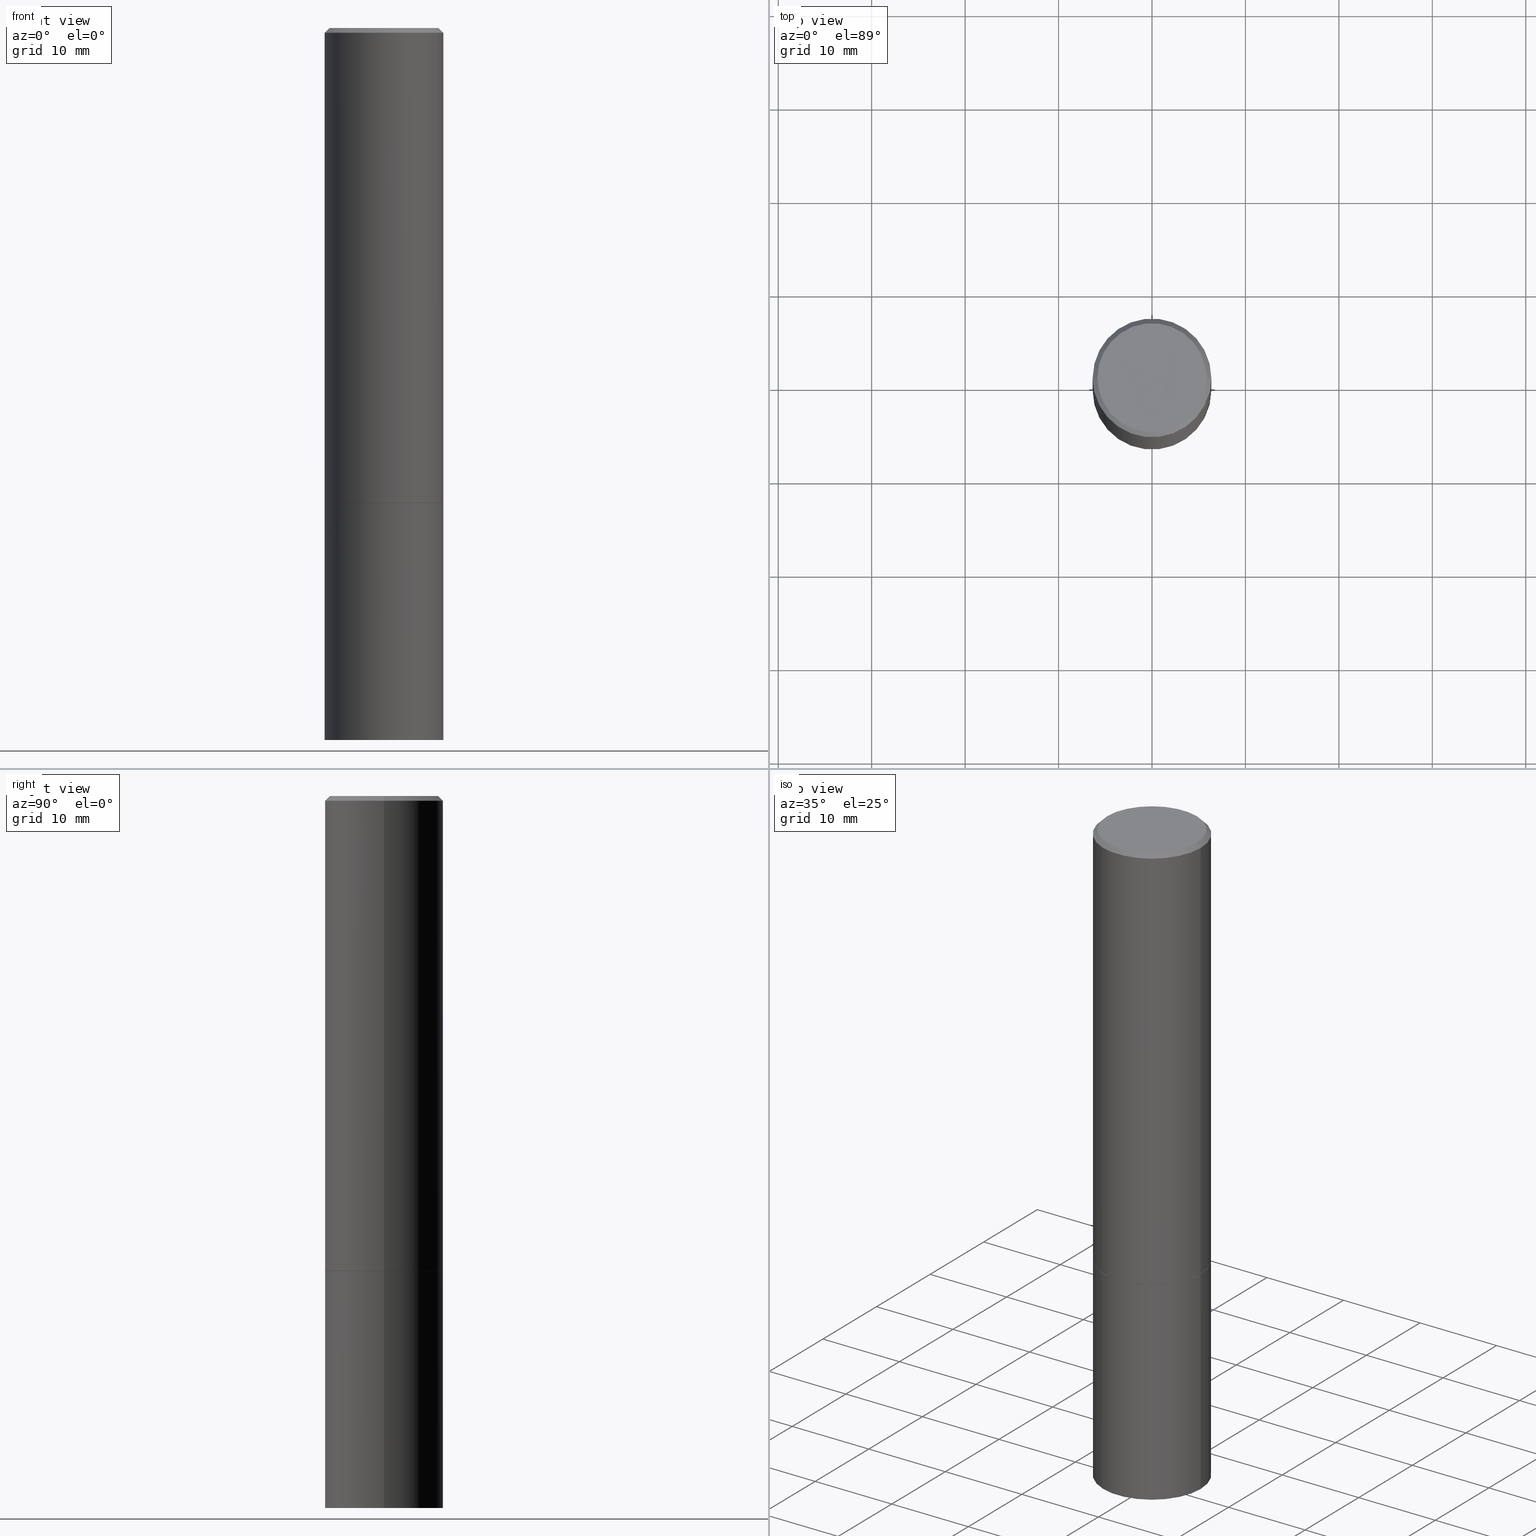
[diagram: canonical four-view strip — front | top / right | iso, engineering-drawing reading convention]
A machine part, canonical four-view strip (front | top / right | iso — engineering-drawing reading convention). The complete STEP part file that produces these views, byte-faithful:
ISO-10303-21;
HEADER;
FILE_DESCRIPTION (( 'STEP AP203' ),
    '1' );
FILE_NAME ('37323.STEP',
    '2024-02-27T21:19:01',
    ( '' ),
    ( '' ),
    'SwSTEP 2.0',
    'SolidWorks 2023',
    '' );
FILE_SCHEMA (( 'CONFIG_CONTROL_DESIGN' ));
ENDSEC;

DATA;
#1 = ADVANCED_FACE ( 'NONE', ( #48 ), #283, .T. ) ;
#2 = APPROVAL_PERSON_ORGANIZATION ( #100, #189, #272 ) ;
#3 = PERSON_AND_ORGANIZATION ( #298, #314 ) ;
#4 = APPROVAL ( #306, 'UNSPECIFIED' ) ;
#5 = AXIS2_PLACEMENT_3D ( 'NONE', #33, #294, #274 ) ;
#6 = DIRECTION ( 'NONE',  ( -2.445468806185136597E-29, 3.491481338843145583E-15, 1.000000000000000000 ) ) ;
#7 = CARTESIAN_POINT ( 'NONE',  ( 4.890937612370296805E-31, -6.982962677686323656E-17, -0.02000000000000009409 ) ) ;
#8 = EDGE_LOOP ( 'NONE', ( #123, #65 ) ) ;
#9 = AXIS2_PLACEMENT_3D ( 'NONE', #219, #335, #73 ) ;
#10 = CARTESIAN_POINT ( 'NONE',  ( 4.890937612370296805E-31, -6.982962677686323656E-17, -0.02000000000000009409 ) ) ;
#11 = PERSON_AND_ORGANIZATION_ROLE ( 'design_owner' ) ;
#12 = VERTEX_POINT ( 'NONE', #76 ) ;
#13 = COORDINATED_UNIVERSAL_TIME_OFFSET ( 5, 0, .BEHIND. ) ;
#14 = CARTESIAN_POINT ( 'NONE',  ( 4.888492143564088712E-29, -6.979471196347448158E-15, -1.999000000000000110 ) ) ;
#15 = ORIENTED_EDGE ( 'NONE', *, *, #18, .T. ) ;
#16 = APPROVAL_DATE_TIME ( #325, #189 ) ;
#17 = CYLINDRICAL_SURFACE ( 'NONE', #118, 0.2500000000000000000 ) ;
#18 = EDGE_CURVE ( 'NONE', #356, #105, #241, .T. ) ;
#19 = ORIENTED_EDGE ( 'NONE', *, *, #255, .T. ) ;
#20 = VECTOR ( 'NONE', #106, 39.37007874015748143 ) ;
#21 = ADVANCED_FACE ( 'NONE', ( #312 ), #308, .T. ) ;
#22 = VERTEX_POINT ( 'NONE', #248 ) ;
#23 = AXIS2_PLACEMENT_3D ( 'NONE', #288, #26, #342 ) ;
#24 = EDGE_CURVE ( 'NONE', #149, #12, #227, .T. ) ;
#25 = CARTESIAN_POINT ( 'NONE',  ( 0.2500000000000000000, -8.725211865769015625E-15, -1.999000000000000110 ) ) ;
#26 = DIRECTION ( 'NONE',  ( 2.445468806185136597E-29, -3.491481338843145583E-15, -1.000000000000000000 ) ) ;
#27 = LINE ( 'NONE', #339, #136 ) ;
#28 = DIRECTION ( 'NONE',  ( 1.000000000000000000, -6.982962677686262766E-15, 0.000000000000000000 ) ) ;
#29 = LENGTH_MEASURE_WITH_UNIT ( LENGTH_MEASURE( 0.02539999999999999897 ), #51 );
#30 = CC_DESIGN_PERSON_AND_ORGANIZATION_ASSIGNMENT ( #3, #75, ( #59 ) ) ;
#31 = DATE_AND_TIME ( #296, #355 ) ;
#32 = LINE ( 'NONE', #337, #190 ) ;
#33 = CARTESIAN_POINT ( 'NONE',  ( 1.745740669421615390E-15, 0.2499999999999930334, -2.000000000000000888 ) ) ;
#34 = CIRCLE ( 'NONE', #80, 0.2299999999999996769 ) ;
#35 = DIRECTION ( 'NONE',  ( 1.000000000000000000, -6.982962677686266711E-15, 4.875813741439106500E-29 ) ) ;
#36 = DIRECTION ( 'NONE',  ( -2.445468806185136877E-29, 3.491481338843145188E-15, 1.000000000000000000 ) ) ;
#37 = ORIENTED_EDGE ( 'NONE', *, *, #145, .F. ) ;
#38 = VECTOR ( 'NONE', #344, 39.37007874015748143 ) ;
#39 = PERSON_AND_ORGANIZATION ( #298, #314 ) ;
#40 = APPLICATION_CONTEXT ( 'configuration controlled 3d designs of mechanical parts and assemblies' ) ;
#41 = CARTESIAN_POINT ( 'NONE',  ( 0.000000000000000000, 0.000000000000000000, 0.000000000000000000 ) ) ;
#42 = ORIENTED_EDGE ( 'NONE', *, *, #61, .T. ) ;
#43 = DIRECTION ( 'NONE',  ( -2.445468806185136597E-29, 3.491481338843145583E-15, 1.000000000000000000 ) ) ;
#44 = ORIENTED_EDGE ( 'NONE', *, *, #145, .T. ) ;
#45 = APPROVAL_STATUS ( 'not_yet_approved' ) ;
#46 = CC_DESIGN_APPROVAL ( #189, ( #297 ) ) ;
#47 = EDGE_LOOP ( 'NONE', ( #326, #226 ) ) ;
#48 = FACE_OUTER_BOUND ( 'NONE', #331, .T. ) ;
#49 = CC_DESIGN_PERSON_AND_ORGANIZATION_ASSIGNMENT ( #186, #11, ( #290 ) ) ;
#50 = DIRECTION ( 'NONE',  ( -2.445468806185136597E-29, 3.491481338843145583E-15, 1.000000000000000000 ) ) ;
#51 =( LENGTH_UNIT ( ) NAMED_UNIT ( * ) SI_UNIT ( $, .METRE. ) );
#52 = EDGE_LOOP ( 'NONE', ( #309, #240, #44, #172 ) ) ;
#53 = CARTESIAN_POINT ( 'NONE',  ( 4.890937612370273754E-29, -6.982962677686291954E-15, -2.000000000000000444 ) ) ;
#54 = DIRECTION ( 'NONE',  ( 1.000000000000000000, -6.982962677686265922E-15, 4.876176775795935793E-29 ) ) ;
#55 = EDGE_CURVE ( 'NONE', #277, #175, #113, .T. ) ;
#56 = AXIS2_PLACEMENT_3D ( 'NONE', #112, #115, #230 ) ;
#57 = PERSON_AND_ORGANIZATION_ROLE ( 'creator' ) ;
#58 = ADVANCED_FACE ( 'NONE', ( #311 ), #164, .F. ) ;
#59 = PRODUCT_DEFINITION_FORMATION_WITH_SPECIFIED_SOURCE ( 'ANY', '', #290, .NOT_KNOWN. ) ;
#60 = CARTESIAN_POINT ( 'NONE',  ( 8.350811314681758556E-46, -1.192274536304357760E-31, -3.414809992080329023E-17 ) ) ;
#61 = EDGE_CURVE ( 'NONE', #151, #127, #147, .T. ) ;
#62 = EDGE_LOOP ( 'NONE', ( #92, #152, #96, #37 ) ) ;
#63 = DIRECTION ( 'NONE',  ( 1.000000000000000000, -6.982962677686267499E-15, 0.000000000000000000 ) ) ;
#64 = AXIS2_PLACEMENT_3D ( 'NONE', #215, #72, #28 ) ;
#65 = ORIENTED_EDGE ( 'NONE', *, *, #142, .F. ) ;
#66 = COORDINATED_UNIVERSAL_TIME_OFFSET ( 5, 0, .BEHIND. ) ;
#67 = EDGE_LOOP ( 'NONE', ( #304, #245 ) ) ;
#68 = ORIENTED_EDGE ( 'NONE', *, *, #351, .T. ) ;
#69 = ORIENTED_EDGE ( 'NONE', *, *, #328, .F. ) ;
#70 = MANIFOLD_SOLID_BREP ( 'Body-Move/Copy2[2]', #195 ) ;
#71 = VECTOR ( 'NONE', #79, 39.37007874015748854 ) ;
#72 = DIRECTION ( 'NONE',  ( -2.445468806185136597E-29, 3.491481338843145583E-15, 1.000000000000000000 ) ) ;
#73 = DIRECTION ( 'NONE',  ( -1.000000000000000000, 6.982962677686265922E-15, -4.876176775795935793E-29 ) ) ;
#74 = DIRECTION ( 'NONE',  ( 1.000000000000000000, 0.000000000000000000, 0.000000000000000000 ) ) ;
#75 = PERSON_AND_ORGANIZATION_ROLE ( 'design_supplier' ) ;
#76 = CARTESIAN_POINT ( 'NONE',  ( 0.2500000000000000000, -1.222018468595100303E-14, -3.000000000000000444 ) ) ;
#77 = PLANE ( 'NONE',  #322 ) ;
#78 = ADVANCED_FACE ( 'NONE', ( #170 ), #234, .T. ) ;
#79 = DIRECTION ( 'NONE',  ( 0.7071067811865232589, -2.468850131082003836E-15, 0.7071067811865715536 ) ) ;
#80 = AXIS2_PLACEMENT_3D ( 'NONE', #60, #323, #117 ) ;
#81 = EDGE_CURVE ( 'NONE', #175, #277, #135, .T. ) ;
#82 = DIRECTION ( 'NONE',  ( -2.445468806185136597E-29, 3.491481338843145583E-15, 1.000000000000000000 ) ) ;
#83 = CARTESIAN_POINT ( 'NONE',  ( -0.2299999999999996769, 1.640996229256269758E-15, -3.414809992081464243E-17 ) ) ;
#84 = APPLICATION_PROTOCOL_DEFINITION ( 'international standard', 'config_control_design', 1994, #338 ) ;
#85 = DIRECTION ( 'NONE',  ( -2.445468806185136597E-29, 3.491481338843145583E-15, 1.000000000000000000 ) ) ;
#86 = AXIS2_PLACEMENT_3D ( 'NONE', #53, #50, #128 ) ;
#87 = CIRCLE ( 'NONE', #168, 0.2500000000000000000 ) ;
#88 = CC_DESIGN_SECURITY_CLASSIFICATION ( #297, ( #59 ) ) ;
#89 = CARTESIAN_POINT ( 'NONE',  ( 7.336406418555409790E-29, -1.047444401652943635E-14, -3.000000000000000444 ) ) ;
#90 = ORIENTED_EDGE ( 'NONE', *, *, #295, .T. ) ;
#91 = DIRECTION ( 'NONE',  ( 1.000000000000000000, -6.982962677686266711E-15, 4.876176775795935793E-29 ) ) ;
#92 = ORIENTED_EDGE ( 'NONE', *, *, #209, .F. ) ;
#93 = ORIENTED_EDGE ( 'NONE', *, *, #204, .F. ) ;
#94 = AXIS2_PLACEMENT_3D ( 'NONE', #97, #280, #108 ) ;
#95 = CYLINDRICAL_SURFACE ( 'NONE', #263, 0.2499999999999998057 ) ;
#96 = ORIENTED_EDGE ( 'NONE', *, *, #251, .T. ) ;
#97 = CARTESIAN_POINT ( 'NONE',  ( 4.888492143564088712E-29, -6.979471196347448158E-15, -1.999000000000000110 ) ) ;
#98 = ORIENTED_EDGE ( 'NONE', *, *, #61, .F. ) ;
#99 = ADVANCED_FACE ( 'NONE', ( #104 ), #233, .T. ) ;
#100 = PERSON_AND_ORGANIZATION ( #298, #314 ) ;
#101 = CARTESIAN_POINT ( 'NONE',  ( 4.890937612370273754E-29, -6.982962677686291954E-15, -2.000000000000000444 ) ) ;
#102 = DATE_AND_TIME ( #363, #250 ) ;
#103 = PLANE ( 'NONE',  #9 ) ;
#104 = FACE_OUTER_BOUND ( 'NONE', #183, .T. ) ;
#105 = VERTEX_POINT ( 'NONE', #216 ) ;
#106 = DIRECTION ( 'NONE',  ( -2.445468806185136877E-29, 3.491481338843145188E-15, 1.000000000000000000 ) ) ;
#107 = CARTESIAN_POINT ( 'NONE',  ( 0.2299999999999996769, -1.681434332853596842E-15, -3.414809992079179628E-17 ) ) ;
#108 = DIRECTION ( 'NONE',  ( 1.000000000000000000, -6.982962677686266711E-15, 0.000000000000000000 ) ) ;
#109 = LOCAL_TIME ( 16, 19, 1.000000000000000000, #275 ) ;
#110 = DESIGN_CONTEXT ( 'detailed design', #40, 'design' ) ;
#111 = ADVANCED_FACE ( 'NONE', ( #359 ), #281, .T. ) ;
#112 = CARTESIAN_POINT ( 'NONE',  ( 4.890937612370296805E-31, -6.982962677686323656E-17, -0.02000000000000009409 ) ) ;
#113 = CIRCLE ( 'NONE', #160, 0.2500000000000000000 ) ;
#114 = AXIS2_PLACEMENT_3D ( 'NONE', #224, #82, #137 ) ;
#115 = DIRECTION ( 'NONE',  ( 2.445468806185136597E-29, -3.491481338843145583E-15, -1.000000000000000000 ) ) ;
#116 = ADVANCED_FACE ( 'NONE', ( #182 ), #103, .T. ) ;
#117 = DIRECTION ( 'NONE',  ( 1.000000000000000000, -6.982962677686266711E-15, 4.875813741439106500E-29 ) ) ;
#118 = AXIS2_PLACEMENT_3D ( 'NONE', #307, #203, #119 ) ;
#119 = DIRECTION ( 'NONE',  ( 1.000000000000000000, -6.982962677686266711E-15, 4.876176775795935793E-29 ) ) ;
#120 = DIRECTION ( 'NONE',  ( 1.000000000000000000, -6.982962677686266711E-15, 4.876176775795935793E-29 ) ) ;
#121 = CALENDAR_DATE ( 2024, 27, 2 ) ;
#122 = DATE_AND_TIME ( #176, #225 ) ;
#123 = ORIENTED_EDGE ( 'NONE', *, *, #18, .F. ) ;
#124 = APPROVAL ( #45, 'UNSPECIFIED' ) ;
#125 = ORIENTED_EDGE ( 'NONE', *, *, #251, .F. ) ;
#126 = AXIS2_PLACEMENT_3D ( 'NONE', #279, #246, #362 ) ;
#127 = VERTEX_POINT ( 'NONE', #258 ) ;
#128 = DIRECTION ( 'NONE',  ( 1.000000000000000000, -6.982962677686266711E-15, 0.000000000000000000 ) ) ;
#129 = PERSON_AND_ORGANIZATION ( #298, #314 ) ;
#130 = AXIS2_PLACEMENT_3D ( 'NONE', #101, #187, #158 ) ;
#131 = AXIS2_PLACEMENT_3D ( 'NONE', #140, #229, #169 ) ;
#132 = DIRECTION ( 'NONE',  ( -2.445468806185136597E-29, 3.491481338843145583E-15, 1.000000000000000000 ) ) ;
#133 = EDGE_LOOP ( 'NONE', ( #239, #300, #178, #146 ) ) ;
#134 =( CONVERSION_BASED_UNIT ( 'INCH', #29 ) LENGTH_UNIT ( ) NAMED_UNIT ( #292 ) );
#135 = CIRCLE ( 'NONE', #354, 0.2500000000000000000 ) ;
#136 = VECTOR ( 'NONE', #252, 39.37007874015748143 ) ;
#137 = DIRECTION ( 'NONE',  ( 1.000000000000000000, -6.982962677686266711E-15, 4.876176775795935793E-29 ) ) ;
#138 = DIRECTION ( 'NONE',  ( 1.000000000000000000, -6.982962677686267499E-15, 0.000000000000000000 ) ) ;
#139 = EDGE_CURVE ( 'NONE', #303, #157, #163, .T. ) ;
#140 = CARTESIAN_POINT ( 'NONE',  ( 1.606081415867838898E-15, 0.2299999999999996769, -8.201147578943240153E-16 ) ) ;
#141 = APPROVAL_PERSON_ORGANIZATION ( #129, #124, #155 ) ;
#142 = EDGE_CURVE ( 'NONE', #105, #356, #217, .T. ) ;
#143 = FACE_OUTER_BOUND ( 'NONE', #133, .T. ) ;
#144 = CIRCLE ( 'NONE', #365, 0.2500000000000000000 ) ;
#145 = EDGE_CURVE ( 'NONE', #303, #243, #32, .T. ) ;
#146 = ORIENTED_EDGE ( 'NONE', *, *, #55, .F. ) ;
#147 = LINE ( 'NONE', #177, #208 ) ;
#148 = PERSON_AND_ORGANIZATION ( #298, #314 ) ;
#149 = VERTEX_POINT ( 'NONE', #192 ) ;
#150 = DIRECTION ( 'NONE',  ( -2.445468806185136597E-29, 3.491481338843145583E-15, 1.000000000000000000 ) ) ;
#151 = VERTEX_POINT ( 'NONE', #25 ) ;
#152 = ORIENTED_EDGE ( 'NONE', *, *, #197, .T. ) ;
#153 = CC_DESIGN_APPROVAL ( #124, ( #340 ) ) ;
#154 = CALENDAR_DATE ( 2024, 27, 2 ) ;
#155 = APPROVAL_ROLE ( '' ) ;
#156 = CC_DESIGN_DATE_AND_TIME_ASSIGNMENT ( #122, #302, ( #340 ) ) ;
#157 = VERTEX_POINT ( 'NONE', #107 ) ;
#158 = DIRECTION ( 'NONE',  ( 1.000000000000000000, -6.982962677686266711E-15, 0.000000000000000000 ) ) ;
#159 = EDGE_CURVE ( 'NONE', #12, #149, #87, .T. ) ;
#160 = AXIS2_PLACEMENT_3D ( 'NONE', #161, #285, #185 ) ;
#161 = CARTESIAN_POINT ( 'NONE',  ( 4.890937612370273754E-29, -6.982962677686291954E-15, -2.000000000000000444 ) ) ;
#162 = CARTESIAN_POINT ( 'NONE',  ( 4.890937612370273754E-29, -6.982962677686291954E-15, -2.000000000000000444 ) ) ;
#163 = CIRCLE ( 'NONE', #268, 0.2299999999999996769 ) ;
#164 = PLANE ( 'NONE',  #5 ) ;
#165 = SECURITY_CLASSIFICATION_LEVEL ( 'unclassified' ) ;
#166 = COORDINATED_UNIVERSAL_TIME_OFFSET ( 5, 0, .BEHIND. ) ;
#167 = PRODUCT_RELATED_PRODUCT_CATEGORY ( 'detail', '', ( #290 ) ) ;
#168 = AXIS2_PLACEMENT_3D ( 'NONE', #89, #171, #265 ) ;
#169 = DIRECTION ( 'NONE',  ( -1.000000000000000000, 6.982962677686265922E-15, -4.876176775795935793E-29 ) ) ;
#170 = FACE_OUTER_BOUND ( 'NONE', #235, .T. ) ;
#171 = DIRECTION ( 'NONE',  ( -2.445468806185136597E-29, 3.491481338843145583E-15, 1.000000000000000000 ) ) ;
#172 = ORIENTED_EDGE ( 'NONE', *, *, #204, .T. ) ;
#173 = COORDINATED_UNIVERSAL_TIME_OFFSET ( 5, 0, .BEHIND. ) ;
#174 = ADVANCED_FACE ( 'NONE', ( #259 ), #231, .F. ) ;
#175 = VERTEX_POINT ( 'NONE', #266 ) ;
#176 = CALENDAR_DATE ( 2024, 27, 2 ) ;
#177 = CARTESIAN_POINT ( 'NONE',  ( 0.2499999999999998057, -1.745740669421565297E-15, 1.219044193948982967E-29 ) ) ;
#178 = ORIENTED_EDGE ( 'NONE', *, *, #181, .T. ) ;
#179 = ORIENTED_EDGE ( 'NONE', *, *, #321, .F. ) ;
#180 = APPLICATION_PROTOCOL_DEFINITION ( 'international standard', 'config_control_design', 1994, #40 ) ;
#181 = EDGE_CURVE ( 'NONE', #12, #175, #264, .T. ) ;
#182 = FACE_OUTER_BOUND ( 'NONE', #301, .T. ) ;
#183 = EDGE_LOOP ( 'NONE', ( #329, #324, #358, #269 ) ) ;
#184 = CIRCLE ( 'NONE', #94, 0.2500000000000000000 ) ;
#185 = DIRECTION ( 'NONE',  ( 1.000000000000000000, -6.982962677686266711E-15, 0.000000000000000000 ) ) ;
#186 = PERSON_AND_ORGANIZATION ( #298, #314 ) ;
#187 = DIRECTION ( 'NONE',  ( -2.445468806185136597E-29, 3.491481338843145583E-15, 1.000000000000000000 ) ) ;
#188 = CARTESIAN_POINT ( 'NONE',  ( 4.890937612370273754E-29, -6.982962677686291954E-15, -2.000000000000000444 ) ) ;
#189 = APPROVAL ( #247, 'UNSPECIFIED' ) ;
#190 = VECTOR ( 'NONE', #253, 39.37007874015748143 ) ;
#191 = FACE_OUTER_BOUND ( 'NONE', #8, .T. ) ;
#192 = CARTESIAN_POINT ( 'NONE',  ( -0.2500000000000000000, -6.952346507707613689E-15, -3.000000000000000444 ) ) ;
#193 = MANIFOLD_SOLID_BREP ( 'Body-Move/Copy2[1]', #249 ) ;
#194 = CARTESIAN_POINT ( 'NONE',  ( -0.2489999999999999991, -5.213711265643642498E-15, -2.000000000000000444 ) ) ;
#195 = CLOSED_SHELL ( 'NONE', ( #1, #78, #21, #221, #273, #99, #333, #174 ) ) ;
#196 =( GEOMETRIC_REPRESENTATION_CONTEXT ( 3 ) GLOBAL_UNCERTAINTY_ASSIGNED_CONTEXT ( ( #207 ) ) GLOBAL_UNIT_ASSIGNED_CONTEXT ( ( #134, #316, #310 ) ) REPRESENTATION_CONTEXT ( 'NONE', 'WORKASPACE' ) );
#197 = EDGE_CURVE ( 'NONE', #157, #127, #257, .T. ) ;
#198 = CARTESIAN_POINT ( 'NONE',  ( 8.350811314681758556E-46, -1.192274536304357760E-31, -3.414809992080329023E-17 ) ) ;
#199 = LOCAL_TIME ( 16, 19, 1.000000000000000000, #173 ) ;
#200 = PERSON_AND_ORGANIZATION ( #298, #314 ) ;
#201 = CARTESIAN_POINT ( 'NONE',  ( 0.2500000000000000000, -1.745740669421566678E-15, 1.219044193948983948E-29 ) ) ;
#202 = EDGE_LOOP ( 'NONE', ( #366, #90, #347, #211 ) ) ;
#203 = DIRECTION ( 'NONE',  ( -2.445468806185136597E-29, 3.491481338843145583E-15, 1.000000000000000000 ) ) ;
#204 = EDGE_CURVE ( 'NONE', #243, #127, #341, .T. ) ;
#205 = ORIENTED_EDGE ( 'NONE', *, *, #24, .F. ) ;
#206 = CARTESIAN_POINT ( 'NONE',  ( -0.2499999999999996114, 1.675911042644700618E-15, -0.02000000000000009409 ) ) ;
#207 = UNCERTAINTY_MEASURE_WITH_UNIT (LENGTH_MEASURE( 1.000000000000000082E-05 ), #134, 'distance_accuracy_value', 'NONE');
#208 = VECTOR ( 'NONE', #36, 39.37007874015748143 ) ;
#209 = EDGE_CURVE ( 'NONE', #157, #303, #34, .T. ) ;
#210 = AXIS2_PLACEMENT_3D ( 'NONE', #7, #85, #138 ) ;
#211 = ORIENTED_EDGE ( 'NONE', *, *, #181, .F. ) ;
#212 = ORIENTED_EDGE ( 'NONE', *, *, #321, .T. ) ;
#213 = EDGE_LOOP ( 'NONE', ( #179, #271, #42, #93 ) ) ;
#214 = CONICAL_SURFACE ( 'NONE', #56, 0.2499999999999996114, 0.7853981633974457255 ) ;
#215 = CARTESIAN_POINT ( 'NONE',  ( 7.336406418555409790E-29, -1.047444401652943635E-14, -3.000000000000000444 ) ) ;
#216 = CARTESIAN_POINT ( 'NONE',  ( -0.2489999999999999991, -5.208412811295420884E-15, -2.000000000000000444 ) ) ;
#217 = CIRCLE ( 'NONE', #327, 0.2489999999999999991 ) ;
#218 = APPROVAL_DATE_TIME ( #102, #124 ) ;
#219 = CARTESIAN_POINT ( 'NONE',  ( 1.745740669421639647E-15, 0.2499999999999895084, -3.000000000000001332 ) ) ;
#220 = MECHANICAL_CONTEXT ( 'NONE', #338, 'mechanical' ) ;
#221 = ADVANCED_FACE ( 'NONE', ( #293 ), #214, .T. ) ;
#222 = LINE ( 'NONE', #287, #71 ) ;
#223 = LINE ( 'NONE', #343, #20 ) ;
#224 = CARTESIAN_POINT ( 'NONE',  ( 0.000000000000000000, 0.000000000000000000, 0.000000000000000000 ) ) ;
#225 = LOCAL_TIME ( 16, 19, 1.000000000000000000, #13 ) ;
#226 = ORIENTED_EDGE ( 'NONE', *, *, #55, .T. ) ;
#227 = CIRCLE ( 'NONE', #64, 0.2500000000000000000 ) ;
#228 = CIRCLE ( 'NONE', #284, 0.2499999999999996114 ) ;
#229 = DIRECTION ( 'NONE',  ( 2.438088387897960049E-29, -3.491481338843145188E-15, -1.000000000000000000 ) ) ;
#230 = DIRECTION ( 'NONE',  ( -1.000000000000000000, 6.982962677686267499E-15, 0.000000000000000000 ) ) ;
#231 = PLANE ( 'NONE',  #131 ) ;
#232 = ADVANCED_FACE ( 'NONE', ( #143 ), #17, .T. ) ;
#233 = CONICAL_SURFACE ( 'NONE', #126, 0.2489999999999999991, 0.7853981633974141952 ) ;
#234 = CYLINDRICAL_SURFACE ( 'NONE', #261, 0.2499999999999998057 ) ;
#235 = EDGE_LOOP ( 'NONE', ( #19, #212, #125, #98 ) ) ;
#236 = CC_DESIGN_PERSON_AND_ORGANIZATION_ASSIGNMENT ( #39, #270, ( #340 ) ) ;
#237 = DIRECTION ( 'NONE',  ( -2.445468806185136597E-29, 3.491481338843145583E-15, 1.000000000000000000 ) ) ;
#238 = CARTESIAN_POINT ( 'NONE',  ( 4.890937612370273754E-29, -6.982962677686291954E-15, -2.000000000000000444 ) ) ;
#239 = ORIENTED_EDGE ( 'NONE', *, *, #295, .F. ) ;
#240 = ORIENTED_EDGE ( 'NONE', *, *, #139, .F. ) ;
#241 = CIRCLE ( 'NONE', #130, 0.2489999999999999991 ) ;
#242 = CC_DESIGN_APPROVAL ( #4, ( #59 ) ) ;
#243 = VERTEX_POINT ( 'NONE', #206 ) ;
#244 = CARTESIAN_POINT ( 'NONE',  ( -0.2500000000000000000, -6.952346507707613689E-15, -2.000000000000000444 ) ) ;
#245 = ORIENTED_EDGE ( 'NONE', *, *, #209, .T. ) ;
#246 = DIRECTION ( 'NONE',  ( -2.445468806185136597E-29, 3.491481338843145583E-15, 1.000000000000000000 ) ) ;
#247 = APPROVAL_STATUS ( 'not_yet_approved' ) ;
#248 = CARTESIAN_POINT ( 'NONE',  ( -0.2500000000000000555, -1.748293572161902502E-15, -1.999000000000000110 ) ) ;
#249 = CLOSED_SHELL ( 'NONE', ( #111, #116, #58, #232 ) ) ;
#250 = LOCAL_TIME ( 16, 19, 1.000000000000000000, #66 ) ;
#251 = EDGE_CURVE ( 'NONE', #127, #243, #228, .T. ) ;
#252 = DIRECTION ( 'NONE',  ( -2.445468806185136877E-29, 3.491481338843145188E-15, 1.000000000000000000 ) ) ;
#253 = DIRECTION ( 'NONE',  ( -0.7071067811865456854, 2.468850131082237733E-15, -0.7071067811865493491 ) ) ;
#254 = DIRECTION ( 'NONE',  ( -0.7071067811865232589, 7.493145998870265808E-15, 0.7071067811865715536 ) ) ;
#255 = EDGE_CURVE ( 'NONE', #151, #22, #144, .T. ) ;
#256 = APPROVAL_PERSON_ORGANIZATION ( #200, #4, #361 ) ;
#257 = LINE ( 'NONE', #319, #345 ) ;
#258 = CARTESIAN_POINT ( 'NONE',  ( 0.2499999999999996114, -1.784954126219743428E-15, -0.02000000000000009409 ) ) ;
#259 = FACE_OUTER_BOUND ( 'NONE', #67, .T. ) ;
#260 = APPROVAL_DATE_TIME ( #31, #4 ) ;
#261 = AXIS2_PLACEMENT_3D ( 'NONE', #41, #346, #120 ) ;
#262 = CC_DESIGN_PERSON_AND_ORGANIZATION_ASSIGNMENT ( #148, #352, ( #297 ) ) ;
#263 = AXIS2_PLACEMENT_3D ( 'NONE', #330, #43, #91 ) ;
#264 = LINE ( 'NONE', #201, #38 ) ;
#265 = DIRECTION ( 'NONE',  ( 1.000000000000000000, -6.982962677686262766E-15, 0.000000000000000000 ) ) ;
#266 = CARTESIAN_POINT ( 'NONE',  ( 0.2500000000000000000, -8.728703347107858632E-15, -2.000000000000000444 ) ) ;
#267 = CC_DESIGN_DATE_AND_TIME_ASSIGNMENT ( #349, #305, ( #297 ) ) ;
#268 = AXIS2_PLACEMENT_3D ( 'NONE', #198, #6, #35 ) ;
#269 = ORIENTED_EDGE ( 'NONE', *, *, #286, .F. ) ;
#270 = PERSON_AND_ORGANIZATION_ROLE ( 'creator' ) ;
#271 = ORIENTED_EDGE ( 'NONE', *, *, #286, .T. ) ;
#272 = APPROVAL_ROLE ( '' ) ;
#273 = ADVANCED_FACE ( 'NONE', ( #278 ), #95, .T. ) ;
#274 = DIRECTION ( 'NONE',  ( -1.000000000000000000, 6.982962677686265922E-15, -4.876176775795935793E-29 ) ) ;
#275 = COORDINATED_UNIVERSAL_TIME_OFFSET ( 5, 0, .BEHIND. ) ;
#276 = AXIS2_PLACEMENT_3D ( 'NONE', #364, #336, #74 ) ;
#277 = VERTEX_POINT ( 'NONE', #244 ) ;
#278 = FACE_OUTER_BOUND ( 'NONE', #213, .T. ) ;
#279 = CARTESIAN_POINT ( 'NONE',  ( 4.890937612370273754E-29, -6.982962677686291954E-15, -2.000000000000000444 ) ) ;
#280 = DIRECTION ( 'NONE',  ( -2.445468806185136597E-29, 3.491481338843145583E-15, 1.000000000000000000 ) ) ;
#281 = CYLINDRICAL_SURFACE ( 'NONE', #114, 0.2500000000000000000 ) ;
#282 = CARTESIAN_POINT ( 'NONE',  ( 0.2489999999999999991, -8.721720384430172617E-15, -2.000000000000000444 ) ) ;
#283 = CONICAL_SURFACE ( 'NONE', #86, 0.2489999999999999991, 0.7853981633974141952 ) ;
#284 = AXIS2_PLACEMENT_3D ( 'NONE', #10, #237, #63 ) ;
#285 = DIRECTION ( 'NONE',  ( -2.445468806185136597E-29, 3.491481338843145583E-15, 1.000000000000000000 ) ) ;
#286 = EDGE_CURVE ( 'NONE', #22, #151, #184, .T. ) ;
#287 = CARTESIAN_POINT ( 'NONE',  ( 0.2489999999999999991, -8.721720384430172617E-15, -2.000000000000000444 ) ) ;
#288 = CARTESIAN_POINT ( 'NONE',  ( 4.890937612370296805E-31, -6.982962677686323656E-17, -0.02000000000000009409 ) ) ;
#289 = DIRECTION ( 'NONE',  ( 1.000000000000000000, -6.982962677686266711E-15, 0.000000000000000000 ) ) ;
#290 = PRODUCT ( '37323', '37323', '', ( #220 ) ) ;
#291 = DIRECTION ( 'NONE',  ( 1.000000000000000000, -6.982962677686266711E-15, 0.000000000000000000 ) ) ;
#292 = DIMENSIONAL_EXPONENTS ( 1.000000000000000000, 0.000000000000000000, 0.000000000000000000, 0.000000000000000000, 0.000000000000000000, 0.000000000000000000, 0.000000000000000000 ) ;
#293 = FACE_OUTER_BOUND ( 'NONE', #52, .T. ) ;
#294 = DIRECTION ( 'NONE',  ( 2.438088387897960049E-29, -3.491481338843145188E-15, -1.000000000000000000 ) ) ;
#295 = EDGE_CURVE ( 'NONE', #149, #277, #27, .T. ) ;
#296 = CALENDAR_DATE ( 2024, 27, 2 ) ;
#297 = SECURITY_CLASSIFICATION ( '', '', #165 ) ;
#298 = PERSON ( 'UNSPECIFIED', 'UNSPECIFIED', 'UNSPECIFIED', ('UNSPECIFIED'), ('UNSPECIFIED'), ('UNSPECIFIED') ) ;
#299 = DIRECTION ( 'NONE',  ( 0.7071067811865456854, -7.319954787623249734E-15, -0.7071067811865493491 ) ) ;
#300 = ORIENTED_EDGE ( 'NONE', *, *, #24, .T. ) ;
#301 = EDGE_LOOP ( 'NONE', ( #353, #205 ) ) ;
#302 = DATE_TIME_ROLE ( 'creation_date' ) ;
#303 = VERTEX_POINT ( 'NONE', #83 ) ;
#304 = ORIENTED_EDGE ( 'NONE', *, *, #139, .T. ) ;
#305 = DATE_TIME_ROLE ( 'classification_date' ) ;
#306 = APPROVAL_STATUS ( 'not_yet_approved' ) ;
#307 = CARTESIAN_POINT ( 'NONE',  ( 0.000000000000000000, 0.000000000000000000, 0.000000000000000000 ) ) ;
#308 = CONICAL_SURFACE ( 'NONE', #23, 0.2499999999999996114, 0.7853981633974457255 ) ;
#309 = ORIENTED_EDGE ( 'NONE', *, *, #197, .F. ) ;
#310 =( NAMED_UNIT ( * ) SI_UNIT ( $, .STERADIAN. ) SOLID_ANGLE_UNIT ( ) );
#311 = FACE_OUTER_BOUND ( 'NONE', #47, .T. ) ;
#312 = FACE_OUTER_BOUND ( 'NONE', #62, .T. ) ;
#313 = LINE ( 'NONE', #194, #334 ) ;
#314 = ORGANIZATION ( 'UNSPECIFIED', 'UNSPECIFIED', '' ) ;
#315 = DIRECTION ( 'NONE',  ( -2.438088387897960049E-29, 3.491481338843145188E-15, 1.000000000000000000 ) ) ;
#316 =( NAMED_UNIT ( * ) PLANE_ANGLE_UNIT ( ) SI_UNIT ( $, .RADIAN. ) );
#317 = PRODUCT_DEFINITION_SHAPE ( 'NONE', 'NONE',  #340 ) ;
#318 = PERSON_AND_ORGANIZATION ( #298, #314 ) ;
#319 = CARTESIAN_POINT ( 'NONE',  ( 0.2499999999999996114, -1.784954126219743428E-15, -0.02000000000000009409 ) ) ;
#320 = CC_DESIGN_PERSON_AND_ORGANIZATION_ASSIGNMENT ( #318, #57, ( #59 ) ) ;
#321 = EDGE_CURVE ( 'NONE', #22, #243, #223, .T. ) ;
#322 = AXIS2_PLACEMENT_3D ( 'NONE', #188, #315, #54 ) ;
#323 = DIRECTION ( 'NONE',  ( -2.445468806185136597E-29, 3.491481338843145583E-15, 1.000000000000000000 ) ) ;
#324 = ORIENTED_EDGE ( 'NONE', *, *, #142, .T. ) ;
#325 = DATE_AND_TIME ( #154, #199 ) ;
#326 = ORIENTED_EDGE ( 'NONE', *, *, #81, .T. ) ;
#327 = AXIS2_PLACEMENT_3D ( 'NONE', #162, #132, #291 ) ;
#328 = EDGE_CURVE ( 'NONE', #356, #151, #222, .T. ) ;
#329 = ORIENTED_EDGE ( 'NONE', *, *, #351, .F. ) ;
#330 = CARTESIAN_POINT ( 'NONE',  ( 0.000000000000000000, 0.000000000000000000, 0.000000000000000000 ) ) ;
#331 = EDGE_LOOP ( 'NONE', ( #15, #68, #348, #69 ) ) ;
#332 = DIRECTION ( 'NONE',  ( 1.000000000000000000, -6.982962677686266711E-15, 0.000000000000000000 ) ) ;
#333 = ADVANCED_FACE ( 'NONE', ( #191 ), #77, .F. ) ;
#334 = VECTOR ( 'NONE', #254, 39.37007874015748854 ) ;
#335 = DIRECTION ( 'NONE',  ( 2.438088387897960049E-29, -3.491481338843145188E-15, -1.000000000000000000 ) ) ;
#336 = DIRECTION ( 'NONE',  ( 0.000000000000000000, 0.000000000000000000, 1.000000000000000000 ) ) ;
#337 = CARTESIAN_POINT ( 'NONE',  ( -0.2499999999999996114, 1.675911042644700618E-15, -0.02000000000000009409 ) ) ;
#338 = APPLICATION_CONTEXT ( 'configuration controlled 3d designs of mechanical parts and assemblies' ) ;
#339 = CARTESIAN_POINT ( 'NONE',  ( -0.2500000000000000000, 1.776356839400250465E-15, -1.229733772563726445E-29 ) ) ;
#340 = PRODUCT_DEFINITION ( 'UNKNOWN', '', #59, #110 ) ;
#341 = CIRCLE ( 'NONE', #210, 0.2499999999999996114 ) ;
#342 = DIRECTION ( 'NONE',  ( -1.000000000000000000, 6.982962677686267499E-15, 0.000000000000000000 ) ) ;
#343 = CARTESIAN_POINT ( 'NONE',  ( -0.2499999999999998057, 1.776356839400249084E-15, -1.229733772563725465E-29 ) ) ;
#344 = DIRECTION ( 'NONE',  ( -2.445468806185136877E-29, 3.491481338843145188E-15, 1.000000000000000000 ) ) ;
#345 = VECTOR ( 'NONE', #299, 39.37007874015748143 ) ;
#346 = DIRECTION ( 'NONE',  ( -2.445468806185136597E-29, 3.491481338843145583E-15, 1.000000000000000000 ) ) ;
#347 = ORIENTED_EDGE ( 'NONE', *, *, #81, .F. ) ;
#348 = ORIENTED_EDGE ( 'NONE', *, *, #255, .F. ) ;
#349 = DATE_AND_TIME ( #121, #109 ) ;
#350 = DIRECTION ( 'NONE',  ( -2.445468806185136597E-29, 3.491481338843145583E-15, 1.000000000000000000 ) ) ;
#351 = EDGE_CURVE ( 'NONE', #105, #22, #313, .T. ) ;
#352 = PERSON_AND_ORGANIZATION_ROLE ( 'classification_officer' ) ;
#353 = ORIENTED_EDGE ( 'NONE', *, *, #159, .F. ) ;
#354 = AXIS2_PLACEMENT_3D ( 'NONE', #238, #150, #289 ) ;
#355 = LOCAL_TIME ( 16, 19, 1.000000000000000000, #166 ) ;
#356 = VERTEX_POINT ( 'NONE', #282 ) ;
#357 = ADVANCED_BREP_SHAPE_REPRESENTATION ( '37323', ( #193, #70, #276 ), #196 ) ;
#358 = ORIENTED_EDGE ( 'NONE', *, *, #328, .T. ) ;
#359 = FACE_OUTER_BOUND ( 'NONE', #202, .T. ) ;
#360 = SHAPE_DEFINITION_REPRESENTATION ( #317, #357 ) ;
#361 = APPROVAL_ROLE ( '' ) ;
#362 = DIRECTION ( 'NONE',  ( 1.000000000000000000, -6.982962677686266711E-15, 0.000000000000000000 ) ) ;
#363 = CALENDAR_DATE ( 2024, 27, 2 ) ;
#364 = CARTESIAN_POINT ( 'NONE',  ( 0.000000000000000000, 0.000000000000000000, 0.000000000000000000 ) ) ;
#365 = AXIS2_PLACEMENT_3D ( 'NONE', #14, #350, #332 ) ;
#366 = ORIENTED_EDGE ( 'NONE', *, *, #159, .T. ) ;
ENDSEC;
END-ISO-10303-21;
